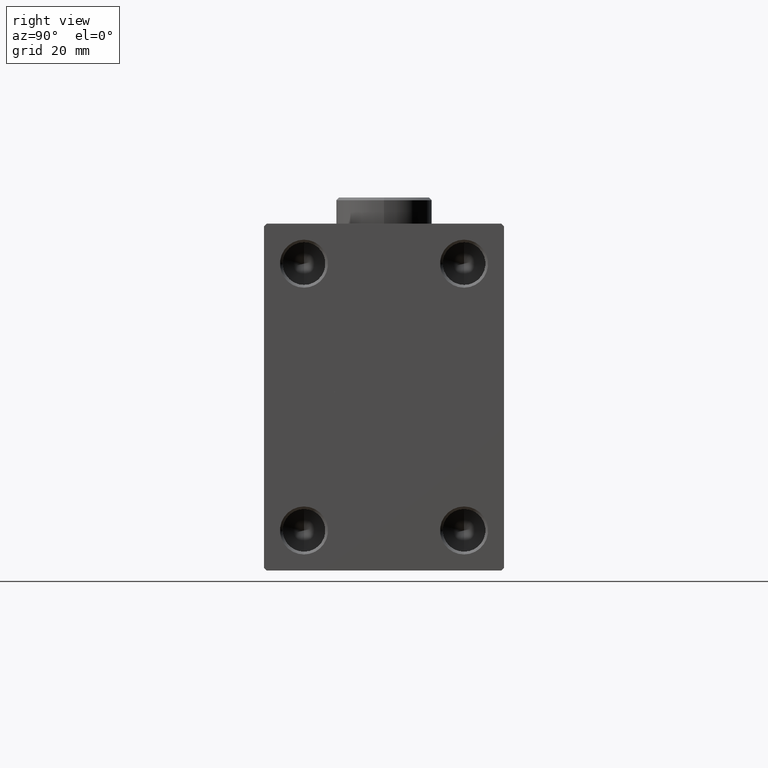
[diagram: clean part render]
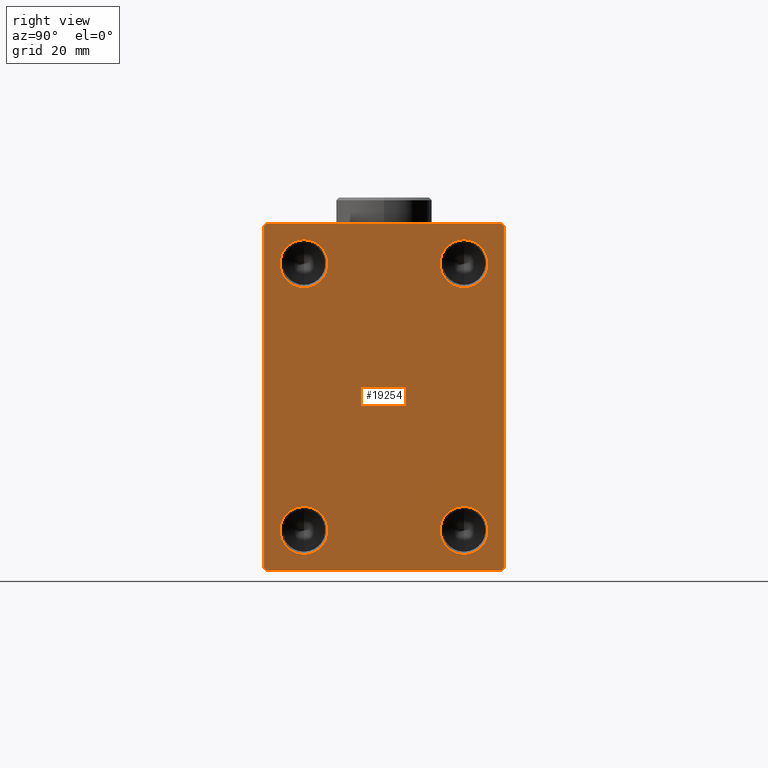
[diagram: same view with one face highlighted and labeled with its STEP entity id]
A machine part, right view. The second image highlights one B-rep face of the part: STEP entity #19254.
In plain terms, the highlighted planar face has unit normal (1, 0, 0).
Its self-contained STEP definition (entity closure, byte-faithful):
#1106 = FACE_BOUND ( 'NONE', #31798, .T. ) ;
#1123 = CIRCLE ( 'NONE', #43709, 4.499999999999976019 ) ;
#1128 = DIRECTION ( 'NONE',  ( 1.000000000000000000, -0.000000000000000000, -0.000000000000000000 ) ) ;
#1335 = CARTESIAN_POINT ( 'NONE',  ( 70.00000000000000000, 0.000000000000000000, 0.000000000000000000 ) ) ;
#1371 = LINE ( 'NONE', #38293, #12253 ) ;
#1374 = CARTESIAN_POINT ( 'NONE',  ( 70.00000000000000000, -22.49999999999999289, 32.49999999999998579 ) ) ;
#1603 = DIRECTION ( 'NONE',  ( 0.000000000000000000, 1.000000000000000000, 0.000000000000000000 ) ) ;
#2964 = VERTEX_POINT ( 'NONE', #16053 ) ;
#3420 = EDGE_CURVE ( 'NONE', #9072, #10670, #1371, .T. ) ;
#3463 = DIRECTION ( 'NONE',  ( -0.000000000000000000, 0.7071067811865524577, -0.7071067811865426878 ) ) ;
#4479 = VERTEX_POINT ( 'NONE', #28786 ) ;
#5164 = DIRECTION ( 'NONE',  ( 0.000000000000000000, 0.000000000000000000, -1.000000000000000000 ) ) ;
#6087 = AXIS2_PLACEMENT_3D ( 'NONE', #12513, #12981, #46133 ) ;
#6806 = AXIS2_PLACEMENT_3D ( 'NONE', #19229, #1128, #10871 ) ;
#6901 = CARTESIAN_POINT ( 'NONE',  ( 70.00000000000000000, -21.99999999999999289, -32.50000000000000711 ) ) ;
#7013 = LINE ( 'NONE', #32053, #9143 ) ;
#7046 = ORIENTED_EDGE ( 'NONE', *, *, #28019, .T. ) ;
#7524 = DIRECTION ( 'NONE',  ( -0.000000000000000000, 0.7071067811865376918, 0.7071067811865574537 ) ) ;
#7778 = ORIENTED_EDGE ( 'NONE', *, *, #29503, .T. ) ;
#7847 = CIRCLE ( 'NONE', #45903, 4.499999999999976019 ) ;
#8503 = LINE ( 'NONE', #1374, #26769 ) ;
#9022 = CARTESIAN_POINT ( 'NONE',  ( 70.00000000000000000, -15.00000000000000000, -20.50000000000003197 ) ) ;
#9072 = VERTEX_POINT ( 'NONE', #6901 ) ;
#9143 = VECTOR ( 'NONE', #3463, 1000.000000000000000 ) ;
#9524 = DIRECTION ( 'NONE',  ( 1.000000000000000000, -0.000000000000000000, -0.000000000000000000 ) ) ;
#10445 = EDGE_CURVE ( 'NONE', #10811, #4479, #7847, .T. ) ;
#10670 = VERTEX_POINT ( 'NONE', #17620 ) ;
#10811 = VERTEX_POINT ( 'NONE', #33097 ) ;
#10871 = DIRECTION ( 'NONE',  ( 0.000000000000000000, 0.000000000000000000, -1.000000000000000000 ) ) ;
#11544 = ORIENTED_EDGE ( 'NONE', *, *, #23079, .F. ) ;
#11722 = CIRCLE ( 'NONE', #44498, 4.499999999999976019 ) ;
#11775 = VERTEX_POINT ( 'NONE', #30289 ) ;
#11860 = CIRCLE ( 'NONE', #45368, 4.499999999999976019 ) ;
#12253 = VECTOR ( 'NONE', #1603, 1000.000000000000000 ) ;
#12498 = PLANE ( 'NONE',  #26568 ) ;
#12513 = CARTESIAN_POINT ( 'NONE',  ( 70.00000000000000000, 15.00000000000000178, 25.00000000000000000 ) ) ;
#12614 = LINE ( 'NONE', #16660, #28976 ) ;
#12944 = LINE ( 'NONE', #13410, #24232 ) ;
#12981 = DIRECTION ( 'NONE',  ( 1.000000000000000000, -0.000000000000000000, -0.000000000000000000 ) ) ;
#13410 = CARTESIAN_POINT ( 'NONE',  ( 70.00000000000000000, -27.24999999999998934, 27.24999999999998934 ) ) ;
#13567 = EDGE_CURVE ( 'NONE', #10670, #17240, #46658, .T. ) ;
#14007 = ORIENTED_EDGE ( 'NONE', *, *, #18216, .T. ) ;
#14849 = EDGE_LOOP ( 'NONE', ( #19341, #11544 ) ) ;
#15556 = CARTESIAN_POINT ( 'NONE',  ( 70.00000000000000000, -22.49999999999999289, -32.00000000000001421 ) ) ;
#15597 = ORIENTED_EDGE ( 'NONE', *, *, #36151, .F. ) ;
#15841 = DIRECTION ( 'NONE',  ( 1.000000000000000000, 0.000000000000000000, 0.000000000000000000 ) ) ;
#16053 = CARTESIAN_POINT ( 'NONE',  ( 70.00000000000000000, 15.00000000000000178, 20.50000000000002842 ) ) ;
#16315 = DIRECTION ( 'NONE',  ( 0.000000000000000000, 0.000000000000000000, -1.000000000000000000 ) ) ;
#16493 = CARTESIAN_POINT ( 'NONE',  ( 70.00000000000000000, 27.24999999999968026, 27.25000000000044054 ) ) ;
#16660 = CARTESIAN_POINT ( 'NONE',  ( 70.00000000000000000, 22.50000000000000000, 32.49999999999999289 ) ) ;
#16761 = DIRECTION ( 'NONE',  ( 0.000000000000000000, -0.7071067811865474617, -0.7071067811865474617 ) ) ;
#17240 = VERTEX_POINT ( 'NONE', #23452 ) ;
#17576 = DIRECTION ( 'NONE',  ( 1.000000000000000000, -0.000000000000000000, -0.000000000000000000 ) ) ;
#17620 = CARTESIAN_POINT ( 'NONE',  ( 70.00000000000000000, 21.99999999999999289, -32.50000000000000711 ) ) ;
#18216 = EDGE_CURVE ( 'NONE', #37377, #34373, #12944, .T. ) ;
#18479 = CARTESIAN_POINT ( 'NONE',  ( 70.00000000000000000, -15.00000000000000000, -29.49999999999997158 ) ) ;
#19229 = CARTESIAN_POINT ( 'NONE',  ( 70.00000000000000000, -15.00000000000000000, 25.00000000000000000 ) ) ;
#19254 = ADVANCED_FACE ( 'NONE', ( #41608, #19908, #1106, #33988, #45183 ), #12498, .T. ) ;
#19341 = ORIENTED_EDGE ( 'NONE', *, *, #39645, .F. ) ;
#19528 = CARTESIAN_POINT ( 'NONE',  ( 70.00000000000000000, -21.99999999999997868, 32.49999999999998579 ) ) ;
#19898 = CARTESIAN_POINT ( 'NONE',  ( 70.00000000000000000, -15.00000000000000000, 25.00000000000000000 ) ) ;
#19908 = FACE_BOUND ( 'NONE', #24130, .T. ) ;
#20093 = VECTOR ( 'NONE', #7524, 999.9999999999998863 ) ;
#20462 = EDGE_CURVE ( 'NONE', #21591, #22291, #31982, .T. ) ;
#20874 = EDGE_CURVE ( 'NONE', #4479, #10811, #35744, .T. ) ;
#21591 = VERTEX_POINT ( 'NONE', #39253 ) ;
#21601 = CARTESIAN_POINT ( 'NONE',  ( 70.00000000000000000, 15.00000000000000178, 29.49999999999997513 ) ) ;
#22123 = CIRCLE ( 'NONE', #30503, 4.499999999999976019 ) ;
#22291 = VERTEX_POINT ( 'NONE', #30877 ) ;
#23079 = EDGE_CURVE ( 'NONE', #2964, #30496, #25916, .T. ) ;
#23227 = EDGE_CURVE ( 'NONE', #41696, #9072, #7013, .T. ) ;
#23381 = CARTESIAN_POINT ( 'NONE',  ( 70.00000000000000000, 15.00000000000000178, -25.00000000000000000 ) ) ;
#23450 = DIRECTION ( 'NONE',  ( 1.000000000000000000, -0.000000000000000000, -0.000000000000000000 ) ) ;
#23452 = CARTESIAN_POINT ( 'NONE',  ( 70.00000000000000000, 22.50000000000000711, -31.99999999999999289 ) ) ;
#23583 = DIRECTION ( 'NONE',  ( 1.000000000000000000, -0.000000000000000000, -0.000000000000000000 ) ) ;
#24130 = EDGE_LOOP ( 'NONE', ( #34439, #27539 ) ) ;
#24182 = CARTESIAN_POINT ( 'NONE',  ( 70.00000000000000000, 22.50000000000000711, -32.50000000000000711 ) ) ;
#24232 = VECTOR ( 'NONE', #16761, 1000.000000000000114 ) ;
#24404 = DIRECTION ( 'NONE',  ( 1.000000000000000000, -0.000000000000000000, -0.000000000000000000 ) ) ;
#24519 = ORIENTED_EDGE ( 'NONE', *, *, #13567, .T. ) ;
#24733 = CARTESIAN_POINT ( 'NONE',  ( 70.00000000000000000, -15.00000000000000000, -25.00000000000000000 ) ) ;
#25167 = ORIENTED_EDGE ( 'NONE', *, *, #20462, .T. ) ;
#25188 = ORIENTED_EDGE ( 'NONE', *, *, #45085, .F. ) ;
#25916 = CIRCLE ( 'NONE', #6087, 4.499999999999976019 ) ;
#26568 = AXIS2_PLACEMENT_3D ( 'NONE', #1335, #15841, #16315 ) ;
#26769 = VECTOR ( 'NONE', #5164, 1000.000000000000000 ) ;
#26952 = DIRECTION ( 'NONE',  ( 0.000000000000000000, 0.000000000000000000, -1.000000000000000000 ) ) ;
#27099 = EDGE_CURVE ( 'NONE', #36870, #11775, #22123, .T. ) ;
#27539 = ORIENTED_EDGE ( 'NONE', *, *, #20874, .F. ) ;
#28019 = EDGE_CURVE ( 'NONE', #22291, #37377, #12614, .T. ) ;
#28786 = CARTESIAN_POINT ( 'NONE',  ( 70.00000000000000000, -15.00000000000000000, 20.50000000000003197 ) ) ;
#28942 = EDGE_LOOP ( 'NONE', ( #25188, #37980 ) ) ;
#28976 = VECTOR ( 'NONE', #35025, 1000.000000000000000 ) ;
#29503 = EDGE_CURVE ( 'NONE', #34373, #41696, #8503, .T. ) ;
#29732 = VERTEX_POINT ( 'NONE', #18479 ) ;
#30289 = CARTESIAN_POINT ( 'NONE',  ( 70.00000000000000000, 15.00000000000000178, -20.50000000000002842 ) ) ;
#30496 = VERTEX_POINT ( 'NONE', #21601 ) ;
#30503 = AXIS2_PLACEMENT_3D ( 'NONE', #41492, #23583, #26952 ) ;
#30877 = CARTESIAN_POINT ( 'NONE',  ( 70.00000000000000000, 21.99999999999998579, 32.49999999999999289 ) ) ;
#31048 = DIRECTION ( 'NONE',  ( -0.000000000000000000, -0.7071067811865574537, 0.7071067811865376918 ) ) ;
#31474 = DIRECTION ( 'NONE',  ( 0.000000000000000000, 0.000000000000000000, -1.000000000000000000 ) ) ;
#31798 = EDGE_LOOP ( 'NONE', ( #46514, #15597 ) ) ;
#31803 = DIRECTION ( 'NONE',  ( 0.000000000000000000, -1.067522139062650425E-16, 1.000000000000000000 ) ) ;
#31982 = LINE ( 'NONE', #16493, #39562 ) ;
#32053 = CARTESIAN_POINT ( 'NONE',  ( 70.00000000000000000, -27.24999999999984368, -27.25000000000022027 ) ) ;
#32952 = CARTESIAN_POINT ( 'NONE',  ( 70.00000000000000000, -22.49999999999999289, 31.99999999999998579 ) ) ;
#33097 = CARTESIAN_POINT ( 'NONE',  ( 70.00000000000000000, -15.00000000000000000, 29.49999999999997158 ) ) ;
#33614 = EDGE_LOOP ( 'NONE', ( #7046, #14007, #7778, #44667, #34549, #24519, #41238, #25167 ) ) ;
#33988 = FACE_BOUND ( 'NONE', #28942, .T. ) ;
#34373 = VERTEX_POINT ( 'NONE', #32952 ) ;
#34439 = ORIENTED_EDGE ( 'NONE', *, *, #10445, .F. ) ;
#34549 = ORIENTED_EDGE ( 'NONE', *, *, #3420, .T. ) ;
#34977 = DIRECTION ( 'NONE',  ( 0.000000000000000000, 0.000000000000000000, -1.000000000000000000 ) ) ;
#35025 = DIRECTION ( 'NONE',  ( 0.000000000000000000, -1.000000000000000000, -1.541976423090495633E-16 ) ) ;
#35744 = CIRCLE ( 'NONE', #6806, 4.499999999999976019 ) ;
#36098 = EDGE_CURVE ( 'NONE', #47178, #29732, #36867, .T. ) ;
#36151 = EDGE_CURVE ( 'NONE', #29732, #47178, #1123, .T. ) ;
#36867 = CIRCLE ( 'NONE', #46772, 4.499999999999976019 ) ;
#36870 = VERTEX_POINT ( 'NONE', #39517 ) ;
#37063 = CARTESIAN_POINT ( 'NONE',  ( 70.00000000000000000, 15.00000000000000178, 25.00000000000000000 ) ) ;
#37377 = VERTEX_POINT ( 'NONE', #19528 ) ;
#37980 = ORIENTED_EDGE ( 'NONE', *, *, #27099, .F. ) ;
#37993 = DIRECTION ( 'NONE',  ( 0.000000000000000000, 0.000000000000000000, -1.000000000000000000 ) ) ;
#38293 = CARTESIAN_POINT ( 'NONE',  ( 70.00000000000000000, -22.49999999999999289, -32.50000000000000711 ) ) ;
#39208 = LINE ( 'NONE', #24182, #40750 ) ;
#39253 = CARTESIAN_POINT ( 'NONE',  ( 70.00000000000000000, 22.50000000000000000, 31.99999999999999289 ) ) ;
#39517 = CARTESIAN_POINT ( 'NONE',  ( 70.00000000000000000, 15.00000000000000178, -29.49999999999997513 ) ) ;
#39562 = VECTOR ( 'NONE', #31048, 999.9999999999998863 ) ;
#39645 = EDGE_CURVE ( 'NONE', #30496, #2964, #11722, .T. ) ;
#40750 = VECTOR ( 'NONE', #31803, 1000.000000000000000 ) ;
#41238 = ORIENTED_EDGE ( 'NONE', *, *, #42543, .T. ) ;
#41492 = CARTESIAN_POINT ( 'NONE',  ( 70.00000000000000000, 15.00000000000000178, -25.00000000000000000 ) ) ;
#41600 = DIRECTION ( 'NONE',  ( 0.000000000000000000, 0.000000000000000000, -1.000000000000000000 ) ) ;
#41608 = FACE_BOUND ( 'NONE', #14849, .T. ) ;
#41696 = VERTEX_POINT ( 'NONE', #15556 ) ;
#42147 = DIRECTION ( 'NONE',  ( 1.000000000000000000, -0.000000000000000000, -0.000000000000000000 ) ) ;
#42543 = EDGE_CURVE ( 'NONE', #17240, #21591, #39208, .T. ) ;
#42607 = DIRECTION ( 'NONE',  ( 0.000000000000000000, 0.000000000000000000, -1.000000000000000000 ) ) ;
#43313 = CARTESIAN_POINT ( 'NONE',  ( 70.00000000000000000, 27.25000000000031264, -27.24999999999955236 ) ) ;
#43709 = AXIS2_PLACEMENT_3D ( 'NONE', #24733, #17576, #42607 ) ;
#44498 = AXIS2_PLACEMENT_3D ( 'NONE', #37063, #23450, #37993 ) ;
#44667 = ORIENTED_EDGE ( 'NONE', *, *, #23227, .T. ) ;
#45085 = EDGE_CURVE ( 'NONE', #11775, #36870, #11860, .T. ) ;
#45183 = FACE_OUTER_BOUND ( 'NONE', #33614, .T. ) ;
#45368 = AXIS2_PLACEMENT_3D ( 'NONE', #23381, #9524, #31474 ) ;
#45903 = AXIS2_PLACEMENT_3D ( 'NONE', #19898, #24404, #41600 ) ;
#46133 = DIRECTION ( 'NONE',  ( 0.000000000000000000, 0.000000000000000000, -1.000000000000000000 ) ) ;
#46193 = CARTESIAN_POINT ( 'NONE',  ( 70.00000000000000000, -15.00000000000000000, -25.00000000000000000 ) ) ;
#46514 = ORIENTED_EDGE ( 'NONE', *, *, #36098, .F. ) ;
#46658 = LINE ( 'NONE', #43313, #20093 ) ;
#46772 = AXIS2_PLACEMENT_3D ( 'NONE', #46193, #42147, #34977 ) ;
#47178 = VERTEX_POINT ( 'NONE', #9022 ) ;